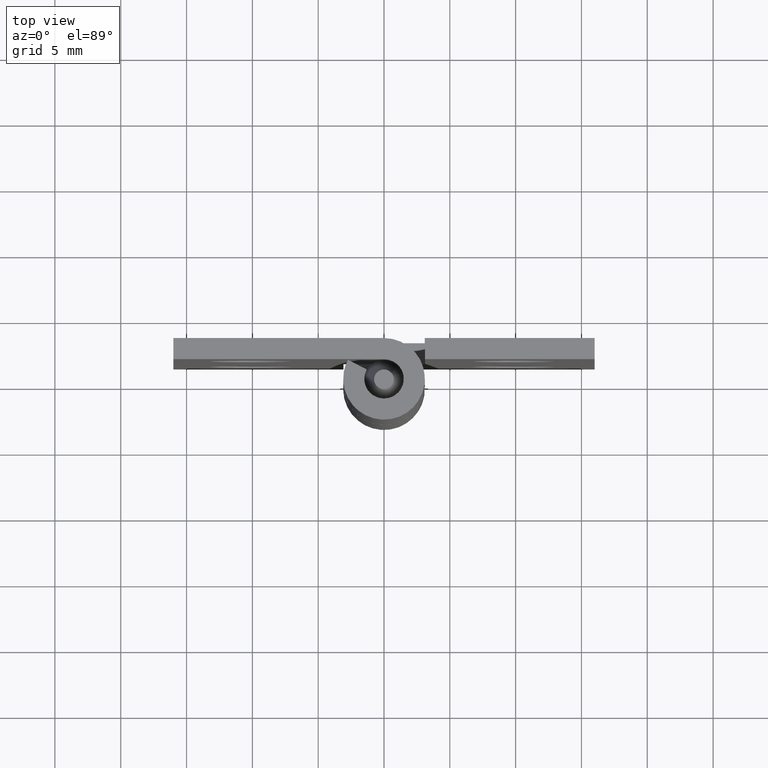
[diagram: clean part render]
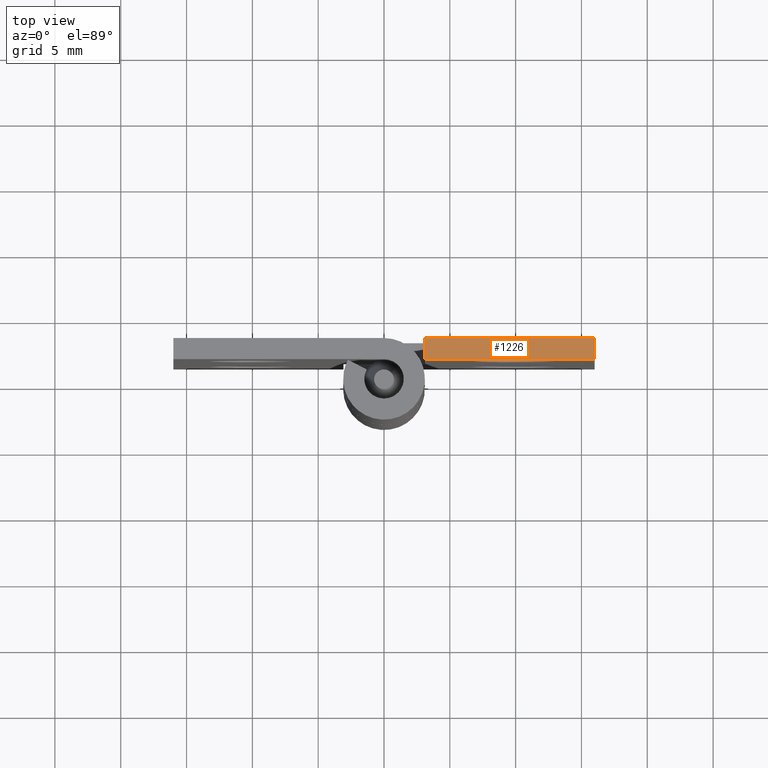
[diagram: same view with one face highlighted and labeled with its STEP entity id]
A machine part, top view. The second image highlights one B-rep face of the part: STEP entity #1226.
In plain terms, the highlighted face is a freeform B-spline surface patch.
Its self-contained STEP definition (entity closure, byte-faithful):
#1098=CARTESIAN_POINT('',(3.100000000000095,1.500000000000000,45.0));
#1099=VERTEX_POINT('',#1098);
#1100=CARTESIAN_POINT('',(3.100000000000095,3.100000000000000,45.0));
#1101=VERTEX_POINT('',#1100);
#1102=CARTESIAN_POINT('',(3.100000000000095,1.500000000000000,45.0));
#1103=CARTESIAN_POINT('',(3.100000000000095,3.100000000000000,45.0));
#1104=QUASI_UNIFORM_CURVE('',1,(#1102,#1103),.UNSPECIFIED.,.F.,.U.);
#1105=EDGE_CURVE('',#1099,#1101,#1104,.T.);
#1199=CARTESIAN_POINT('',(2.455644550394657,1.420080008817434,45.0));
#1200=CARTESIAN_POINT('',(16.644362757595179,1.420080008817434,45.0));
#1201=CARTESIAN_POINT('',(2.455644550394657,3.179919919656993,45.0));
#1202=CARTESIAN_POINT('',(16.644362757595179,3.179919919656993,45.0));
#1203=B_SPLINE_SURFACE_WITH_KNOTS('',1,1,((#1199,#1201),(#1200,#1202)),.UNSPECIFIED.,.F.,.F.,.U.,(2,2),(2,2),(0.0,14.188718207200530),(0.041708337925747,0.958291624821350),.UNSPECIFIED.);
#1204=CARTESIAN_POINT('',(16.000008000000101,3.100000000000000,45.0));
#1205=VERTEX_POINT('',#1204);
#1206=CARTESIAN_POINT('',(3.100000000000095,3.100000000000000,45.0));
#1207=CARTESIAN_POINT('',(16.000008000000101,3.100000000000000,45.0));
#1208=QUASI_UNIFORM_CURVE('',1,(#1206,#1207),.UNSPECIFIED.,.F.,.U.);
#1209=EDGE_CURVE('',#1101,#1205,#1208,.T.);
#1210=ORIENTED_EDGE('',*,*,#1209,.F.);
#1211=ORIENTED_EDGE('',*,*,#1105,.F.);
#1212=CARTESIAN_POINT('',(16.000008000000101,1.500000000000000,45.0));
#1213=VERTEX_POINT('',#1212);
#1214=CARTESIAN_POINT('',(16.000008000000101,1.500000000000000,45.0));
#1215=CARTESIAN_POINT('',(3.100000000000095,1.500000000000000,45.0));
#1216=QUASI_UNIFORM_CURVE('',1,(#1214,#1215),.UNSPECIFIED.,.F.,.U.);
#1217=EDGE_CURVE('',#1213,#1099,#1216,.T.);
#1218=ORIENTED_EDGE('',*,*,#1217,.F.);
#1219=CARTESIAN_POINT('',(16.000008000000101,3.100000000000000,45.0));
#1220=CARTESIAN_POINT('',(16.000008000000101,1.500000000000000,45.0));
#1221=QUASI_UNIFORM_CURVE('',1,(#1219,#1220),.UNSPECIFIED.,.F.,.U.);
#1222=EDGE_CURVE('',#1205,#1213,#1221,.T.);
#1223=ORIENTED_EDGE('',*,*,#1222,.F.);
#1224=EDGE_LOOP('',(#1210,#1211,#1218,#1223));
#1225=FACE_OUTER_BOUND('',#1224,.T.);
#1226=ADVANCED_FACE('',(#1225),#1203,.T.);